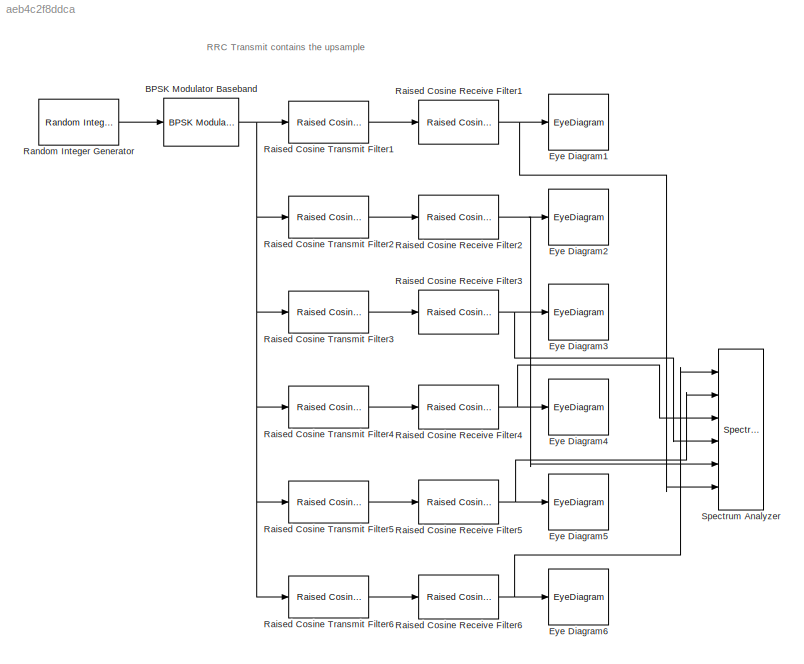
MODEL slx_aeb4c2f8ddca
KIND model
CONFIG AbsTol = auto
CONFIG EnableMultiTasking = off
CONFIG FixedStep = auto
CONFIG MaxStep = auto
CONFIG MinStep = auto
CONFIG RelTol = 1e-3
CONFIG SampleTimeConstraint = Unconstrained
CONFIG Solver = FixedStepDiscrete
CONFIG SolverName = FixedStepDiscrete
CONFIG StartTime = 0.0
CONFIG StopTime = 1000.0
BLOCK [Reference] BPSK Modulator Baseband  REF=commdigbbndpm3/BPSK
Modulator
Baseband
  Ports = [1, 1]
  SourceBlock = commdigbbndpm3/BPSK\nModulator\nBaseband
  SourceProductBaseCode = CM
  SourceProductName = Communications Toolbox
  SourceType = BPSK Modulator Baseband
BLOCK [EyeDiagram] Eye Diagram1
  Ports = [1]
  ScopeSpecificationString = comm.scopes.EyeDiagramBlockCfg('CurrentConfiguration', extmgr.ConfigurationSet(extmgr.Configuration('Core','General UI',true),extmgr.Configuration('Core','Source UI',true),extmgr.Configuration('Sources','WiredSimulink',true),extmgr.Configuration('Sources','Workspace',false),extmgr.Configuration('Sources','Simulink',false),extmgr.Configuration('Sources','File',false),extmgr.Configuration('Sources',...<+2161ch>
BLOCK [EyeDiagram] Eye Diagram2
  Ports = [1]
  ScopeSpecificationString = comm.scopes.EyeDiagramBlockCfg('CurrentConfiguration', extmgr.ConfigurationSet(extmgr.Configuration('Core','General UI',true),extmgr.Configuration('Core','Source UI',true),extmgr.Configuration('Sources','Workspace',false),extmgr.Configuration('Sources','Simulink',false),extmgr.Configuration('Sources','File',false),extmgr.Configuration('Sources','SPTool',false),extmgr.Configuration('Sources','Strea...<+2163ch>
BLOCK [EyeDiagram] Eye Diagram3
  Ports = [1]
  ScopeSpecificationString = comm.scopes.EyeDiagramBlockCfg('CurrentConfiguration', extmgr.ConfigurationSet(extmgr.Configuration('Core','General UI',true),extmgr.Configuration('Core','Source UI',true),extmgr.Configuration('Sources','WiredSimulink',true),extmgr.Configuration('Sources','Workspace',false),extmgr.Configuration('Sources','Simulink',false),extmgr.Configuration('Sources','File',false),extmgr.Configuration('Sources',...<+2163ch>
BLOCK [EyeDiagram] Eye Diagram4
  Ports = [1]
  ScopeSpecificationString = comm.scopes.EyeDiagramBlockCfg('CurrentConfiguration', extmgr.ConfigurationSet(extmgr.Configuration('Core','General UI',true),extmgr.Configuration('Core','Source UI',true),extmgr.Configuration('Sources','WiredSimulink',true),extmgr.Configuration('Sources','Workspace',false),extmgr.Configuration('Sources','Simulink',false),extmgr.Configuration('Sources','File',false),extmgr.Configuration('Sources',...<+2164ch>  <repeated x3 — deduplicated; at blocks: Eye Diagram4, Eye Diagram5, Eye Diagram6>
BLOCK [EyeDiagram] Eye Diagram5
  Ports = [1]
BLOCK [EyeDiagram] Eye Diagram6
  Ports = [1]
BLOCK [Reference] Raised Cosine Receive Filter1  REF=commfilt2/Raised Cosine
Receive Filter
  Ports = [1, 1]
  SourceBlock = commfilt2/Raised Cosine\nReceive Filter
  SourceProductBaseCode = CM
  SourceProductName = Communications Toolbox
  SourceType = Raised Cosine Receive Filter
  UserDataPersistent = on
BLOCK [Reference] Raised Cosine Receive Filter2  REF=commfilt2/Raised Cosine
Receive Filter
  Ports = [1, 1]
  SourceBlock = commfilt2/Raised Cosine\nReceive Filter
  SourceProductBaseCode = CM
  SourceProductName = Communications Toolbox
  SourceType = Raised Cosine Receive Filter
  UserDataPersistent = on
BLOCK [Reference] Raised Cosine Receive Filter3  REF=commfilt2/Raised Cosine
Receive Filter
  Ports = [1, 1]
  SourceBlock = commfilt2/Raised Cosine\nReceive Filter
  SourceProductBaseCode = CM
  SourceProductName = Communications Toolbox
  SourceType = Raised Cosine Receive Filter
  UserDataPersistent = on
BLOCK [Reference] Raised Cosine Receive Filter4  REF=commfilt2/Raised Cosine
Receive Filter
  Ports = [1, 1]
  SourceBlock = commfilt2/Raised Cosine\nReceive Filter
  SourceProductBaseCode = CM
  SourceProductName = Communications Toolbox
  SourceType = Raised Cosine Receive Filter
  UserDataPersistent = on
BLOCK [Reference] Raised Cosine Receive Filter5  REF=commfilt2/Raised Cosine
Receive Filter
  Ports = [1, 1]
  SourceBlock = commfilt2/Raised Cosine\nReceive Filter
  SourceProductBaseCode = CM
  SourceProductName = Communications Toolbox
  SourceType = Raised Cosine Receive Filter
  UserDataPersistent = on
BLOCK [Reference] Raised Cosine Receive Filter6  REF=commfilt2/Raised Cosine
Receive Filter
  Ports = [1, 1]
  SourceBlock = commfilt2/Raised Cosine\nReceive Filter
  SourceProductBaseCode = CM
  SourceProductName = Communications Toolbox
  SourceType = Raised Cosine Receive Filter
  UserDataPersistent = on
BLOCK [Reference] Raised Cosine Transmit Filter1  REF=commfilt2/Raised Cosine
Transmit Filter
  Ports = [1, 1]
  SourceBlock = commfilt2/Raised Cosine\nTransmit Filter
  SourceProductBaseCode = CM
  SourceProductName = Communications Toolbox
  SourceType = Raised Cosine Transmit Filter
BLOCK [Reference] Raised Cosine Transmit Filter2  REF=commfilt2/Raised Cosine
Transmit Filter
  Ports = [1, 1]
  SourceBlock = commfilt2/Raised Cosine\nTransmit Filter
  SourceProductBaseCode = CM
  SourceProductName = Communications Toolbox
  SourceType = Raised Cosine Transmit Filter
BLOCK [Reference] Raised Cosine Transmit Filter3  REF=commfilt2/Raised Cosine
Transmit Filter
  Ports = [1, 1]
  SourceBlock = commfilt2/Raised Cosine\nTransmit Filter
  SourceProductBaseCode = CM
  SourceProductName = Communications Toolbox
  SourceType = Raised Cosine Transmit Filter
BLOCK [Reference] Raised Cosine Transmit Filter4  REF=commfilt2/Raised Cosine
Transmit Filter
  Ports = [1, 1]
  SourceBlock = commfilt2/Raised Cosine\nTransmit Filter
  SourceProductBaseCode = CM
  SourceProductName = Communications Toolbox
  SourceType = Raised Cosine Transmit Filter
BLOCK [Reference] Raised Cosine Transmit Filter5  REF=commfilt2/Raised Cosine
Transmit Filter
  Ports = [1, 1]
  SourceBlock = commfilt2/Raised Cosine\nTransmit Filter
  SourceProductBaseCode = CM
  SourceProductName = Communications Toolbox
  SourceType = Raised Cosine Transmit Filter
BLOCK [Reference] Raised Cosine Transmit Filter6  REF=commfilt2/Raised Cosine
Transmit Filter
  Ports = [1, 1]
  SourceBlock = commfilt2/Raised Cosine\nTransmit Filter
  SourceProductBaseCode = CM
  SourceProductName = Communications Toolbox
  SourceType = Raised Cosine Transmit Filter
BLOCK [Reference] Random Integer Generator  REF=commrandsrc3/Random Integer
Generator
  Ports = [0, 1]
  SourceBlock = commrandsrc3/Random Integer\nGenerator
  SourceProductBaseCode = CM
  SourceProductName = Communications Toolbox
  SourceType = Random Integer Generator
BLOCK [SpectrumAnalyzer] Spectrum Analyzer
  NumInputPorts = 6
  Ports = [6]
  ScopeSpecificationString = spbscopes.SpectrumAnalyzerBlockCfg('CurrentConfiguration', extmgr.ConfigurationSet(extmgr.Configuration('Core','General UI',true),extmgr.Configuration('Core','Source UI',true),extmgr.Configuration('Sources','WiredSimulink',true),extmgr.Configuration('Visuals','Spectrum',true,'AxesProperties',struct('Color',{[0 0 0],[0 0 0]},'XColor',{[0.686274509803922 0.686274509803922 0.686274509803922],[0.68627...<+2379ch>
ANNOTATION (root): RRC Transmit contains the upsample
NET BPSK Modulator Baseband:1 -> Raised Cosine Transmit Filter1:1, Raised Cosine Transmit Filter2:1, Raised Cosine Transmit Filter3:1, Raised Cosine Transmit Filter4:1, Raised Cosine Transmit Filter5:1, Raised Cosine Transmit Filter6:1
NET Raised Cosine Receive Filter1:1 -> Eye Diagram1:1, Spectrum Analyzer:6
NET Raised Cosine Receive Filter2:1 -> Eye Diagram2:1, Spectrum Analyzer:5
NET Raised Cosine Receive Filter3:1 -> Eye Diagram3:1, Spectrum Analyzer:4
NET Raised Cosine Receive Filter4:1 -> Eye Diagram4:1, Spectrum Analyzer:3
NET Raised Cosine Receive Filter5:1 -> Eye Diagram5:1, Spectrum Analyzer:2
NET Raised Cosine Receive Filter6:1 -> Eye Diagram6:1, Spectrum Analyzer:1
LINE Raised Cosine Transmit Filter1:1 -> Raised Cosine Receive Filter1:1
LINE Raised Cosine Transmit Filter2:1 -> Raised Cosine Receive Filter2:1
LINE Raised Cosine Transmit Filter3:1 -> Raised Cosine Receive Filter3:1
LINE Raised Cosine Transmit Filter4:1 -> Raised Cosine Receive Filter4:1
LINE Raised Cosine Transmit Filter5:1 -> Raised Cosine Receive Filter5:1
LINE Raised Cosine Transmit Filter6:1 -> Raised Cosine Receive Filter6:1
LINE Random Integer Generator:1 -> BPSK Modulator Baseband:1
note: NET lines group one-source signal fan-out (src -> all destinations, sorted); 1:1 wires keep LINE
